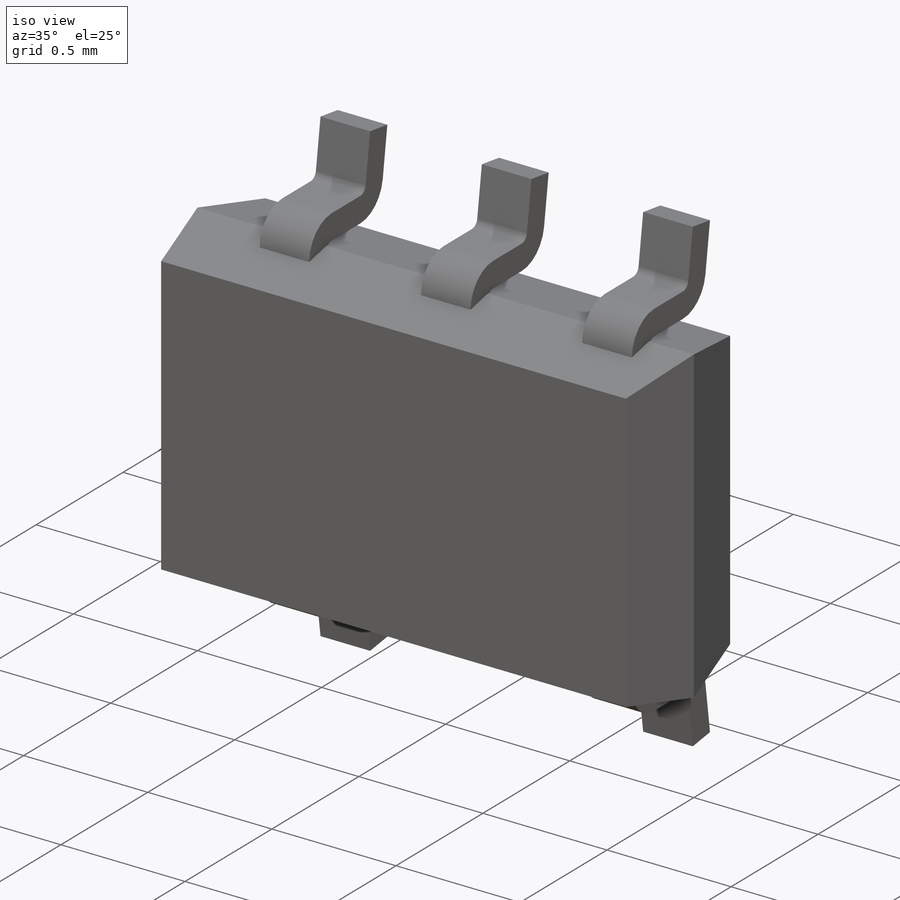
[diagram: iso view]
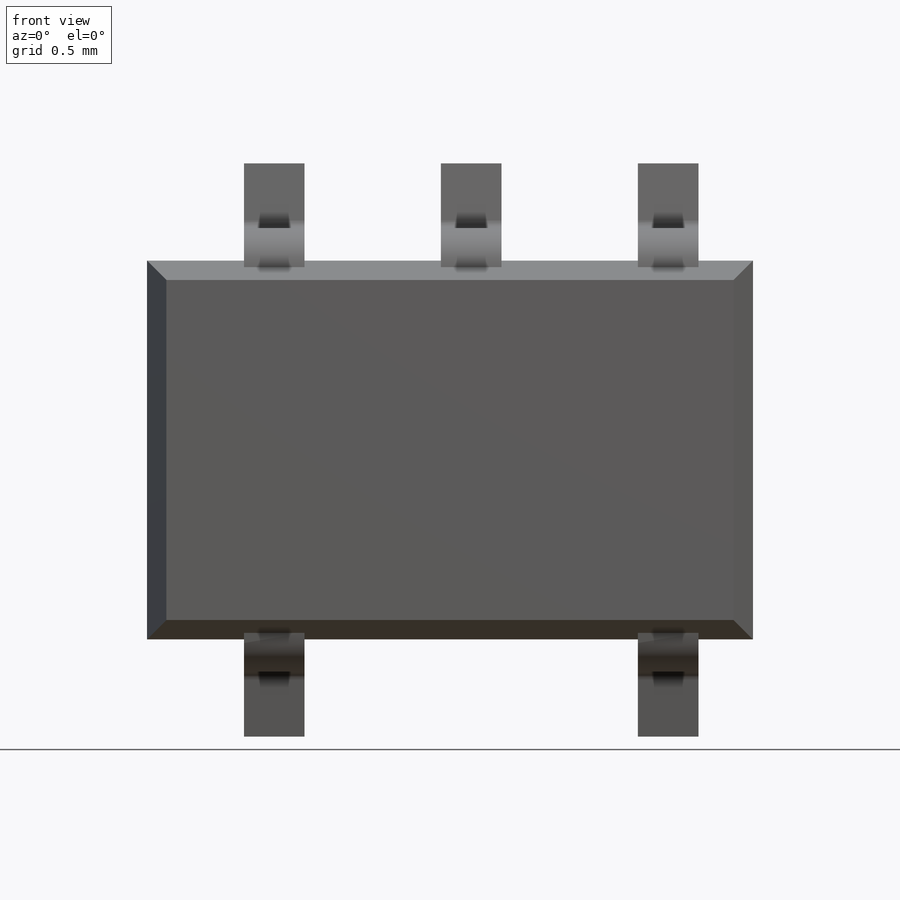
[diagram: front view]
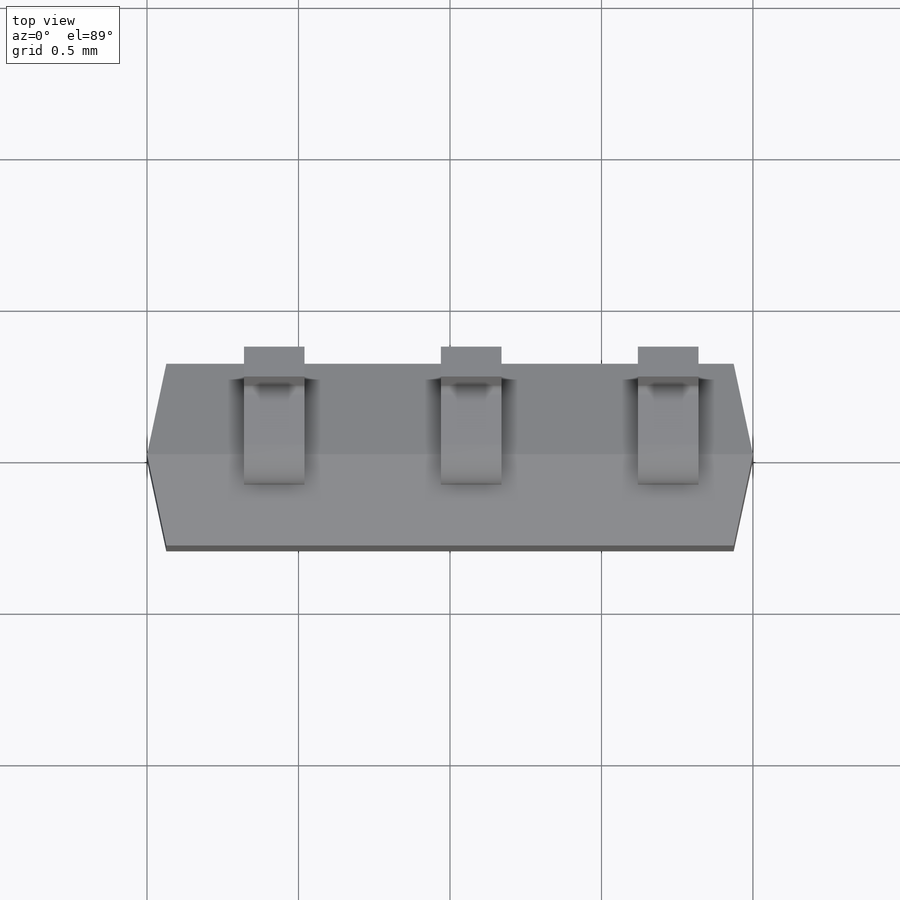
[diagram: top view]
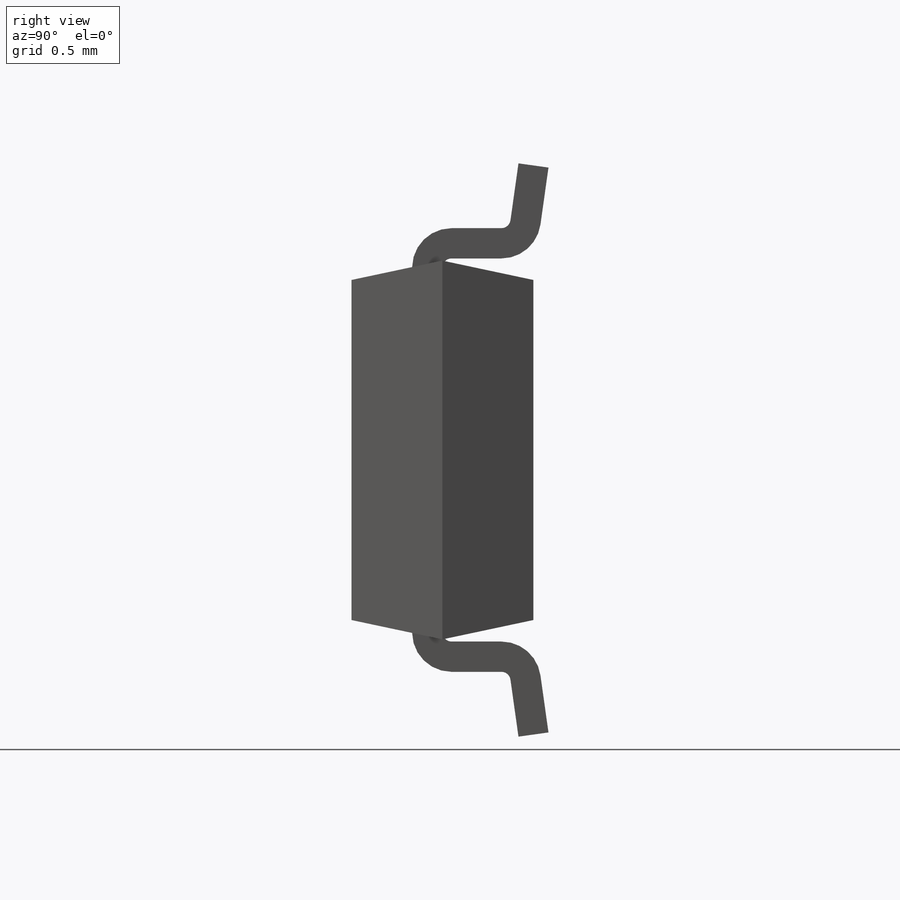
[diagram: right view]
SOLIDWORKS PART (.sldprt)
format: sldprt  version: not decoded by parser v0  size: 207,872 bytes
history: native  units: mm
features: sketch x3, extrude x2, plane x2, pattern_linear x2, material x1, mirror x1 (+13 scaffold rows collapsed)
feature tree (24):
  scaffold x13  (default folders/planes/origin — collapsed)
  material  "Material <not specified>"
  sketch  "Sketch1"  dims[D1=1.25mm D2=2.0mm]
  extrude  "Boss-Extrude1"  Depth=0.3mm
  sketch  "Sketch2"
  extrude  "Boss-Extrude2"  Depth=0.3mm
  plane  "Plane1"  Offset=0.42mm
  sketch  "Sketch4"  dims[c1.D1=0.3mm c1.D2=~1.122466mm c2.D2=~161.909097deg c3.D2=~0.315602mm c4.D2=8.0deg c4.D3=0.05mm c4.D1=0.2mm c4.D5=0.1mm c4.D6=10.0mm c4.D7=0.03mm]
  pattern_linear  "LPattern1"  Count1=3 Count2=1 Spacing1=0.65mm Spacing2=10mm
  plane  "Plane2"  Offset=0.625mm
  mirror  "Mirror1"
  pattern_linear  "LPattern2"  Count1=2 Count2=1 Spacing1=0.65mm Spacing2=10mm
decode coverage: 6 of 8 modeling features carry decoded parameters
note: ~ marks probable driven/reference dimensions
note: suppression state not decoded; provenance and decode notes live in map.json
